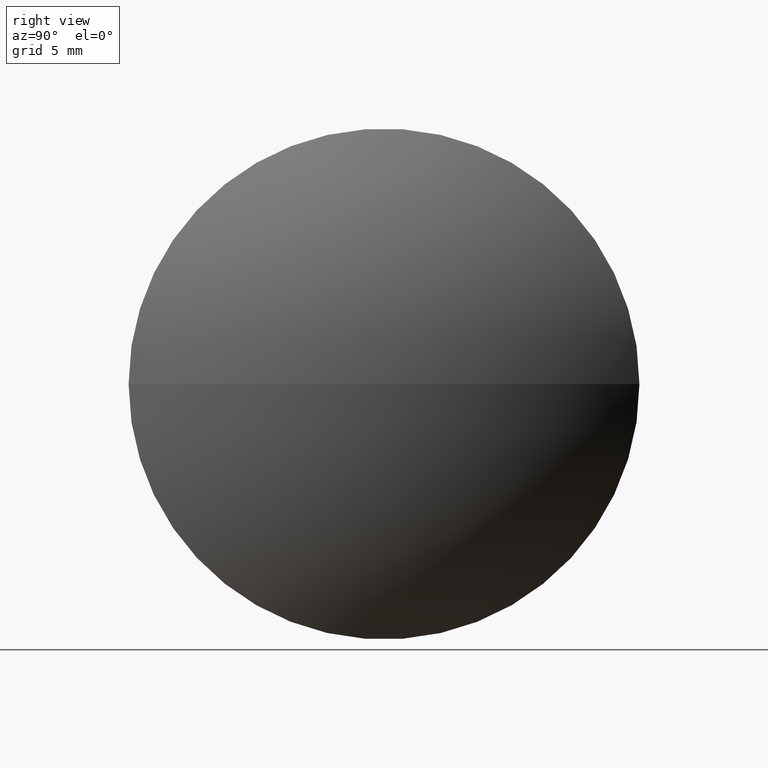
[diagram: clean part render]
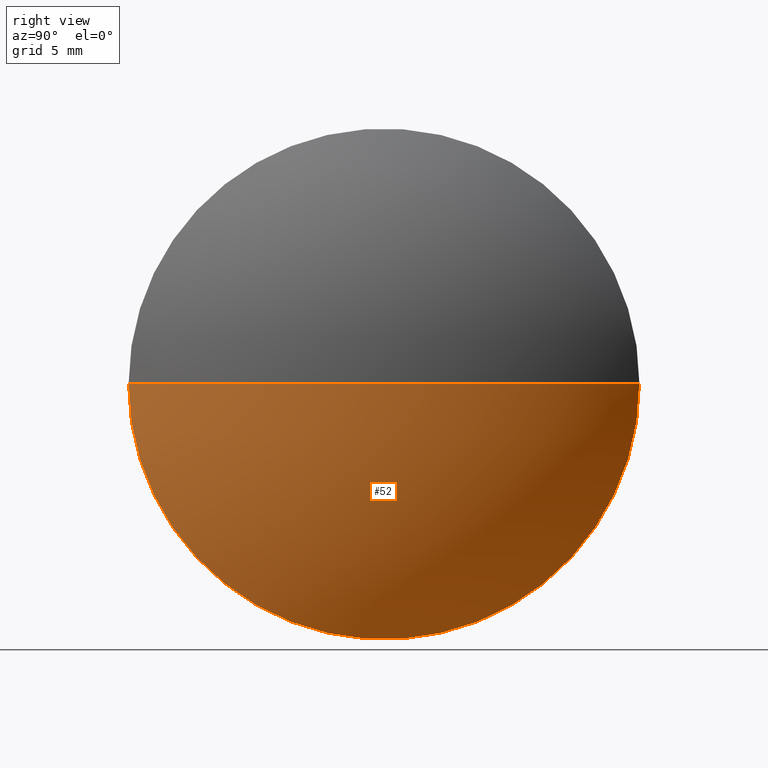
[diagram: same view with one face highlighted and labeled with its STEP entity id]
A machine part, right view. The second image highlights one B-rep face of the part: STEP entity #52.
In plain terms, the highlighted spherical surface has radius 20.9918 mm.
Its self-contained STEP definition (entity closure, byte-faithful):
#4 = CIRCLE ( 'NONE', #156, 20.99175099999987637 ) ;
#7 = DIRECTION ( 'NONE',  ( 0.000000000000000000, 1.000000000000000000, 1.224646799147353207E-16 ) ) ;
#16 = VERTEX_POINT ( 'NONE', #42 ) ;
#25 = VERTEX_POINT ( 'NONE', #135 ) ;
#27 = DIRECTION ( 'NONE',  ( 1.322213454972335606E-14, 1.000000000000000000, 0.000000000000000000 ) ) ;
#28 = CARTESIAN_POINT ( 'NONE',  ( 16.71417388360379164, 12.70000005648239139, 0.000000000000000000 ) ) ;
#36 = CIRCLE ( 'NONE', #89, 20.99175099999987637 ) ;
#38 = FACE_OUTER_BOUND ( 'NONE', #143, .T. ) ;
#39 = CARTESIAN_POINT ( 'NONE',  ( 0.000000000000000000, 0.000000000000000000, 0.000000000000000000 ) ) ;
#42 = CARTESIAN_POINT ( 'NONE',  ( 20.99175099999987637, -2.762703821227557815E-13, 0.000000000000000000 ) ) ;
#46 = DIRECTION ( 'NONE',  ( -1.000000000000000000, 1.322213454972335606E-14, -0.000000000000000000 ) ) ;
#52 = ADVANCED_FACE ( 'NONE', ( #38 ), #145, .T. ) ;
#55 = DIRECTION ( 'NONE',  ( 0.000000000000000000, 0.000000000000000000, 1.000000000000000000 ) ) ;
#61 = DIRECTION ( 'NONE',  ( 1.619244475421433971E-30, 1.224646799147353207E-16, -1.000000000000000000 ) ) ;
#71 = CARTESIAN_POINT ( 'NONE',  ( 0.000000000000000000, 0.000000000000000000, 0.000000000000000000 ) ) ;
#85 = CARTESIAN_POINT ( 'NONE',  ( 16.71417388360362821, -2.209970559764793155E-13, 0.000000000000000000 ) ) ;
#89 = AXIS2_PLACEMENT_3D ( 'NONE', #161, #61, #7 ) ;
#91 = DIRECTION ( 'NONE',  ( 1.000000000000000000, 0.000000000000000000, 0.000000000000000000 ) ) ;
#92 = AXIS2_PLACEMENT_3D ( 'NONE', #39, #118, #27 ) ;
#99 = ORIENTED_EDGE ( 'NONE', *, *, #104, .F. ) ;
#104 = EDGE_CURVE ( 'NONE', #16, #105, #4, .T. ) ;
#105 = VERTEX_POINT ( 'NONE', #28 ) ;
#108 = DIRECTION ( 'NONE',  ( -1.311287031126963176E-14, -1.000000000000000000, 0.000000000000000000 ) ) ;
#118 = DIRECTION ( 'NONE',  ( 0.000000000000000000, 0.000000000000000000, -1.000000000000000000 ) ) ;
#129 = AXIS2_PLACEMENT_3D ( 'NONE', #85, #46, #108 ) ;
#135 = CARTESIAN_POINT ( 'NONE',  ( 16.71417388360346123, -12.70000005648283370, -1.555301441834263505E-15 ) ) ;
#141 = CIRCLE ( 'NONE', #129, 12.70000005648261165 ) ;
#142 = ORIENTED_EDGE ( 'NONE', *, *, #151, .T. ) ;
#143 = EDGE_LOOP ( 'NONE', ( #99, #142, #155 ) ) ;
#145 = SPHERICAL_SURFACE ( 'NONE', #92, 20.99175099999987637 ) ;
#151 = EDGE_CURVE ( 'NONE', #16, #25, #36, .T. ) ;
#155 = ORIENTED_EDGE ( 'NONE', *, *, #166, .F. ) ;
#156 = AXIS2_PLACEMENT_3D ( 'NONE', #71, #55, #91 ) ;
#161 = CARTESIAN_POINT ( 'NONE',  ( 0.000000000000000000, 0.000000000000000000, 0.000000000000000000 ) ) ;
#166 = EDGE_CURVE ( 'NONE', #105, #25, #141, .T. ) ;